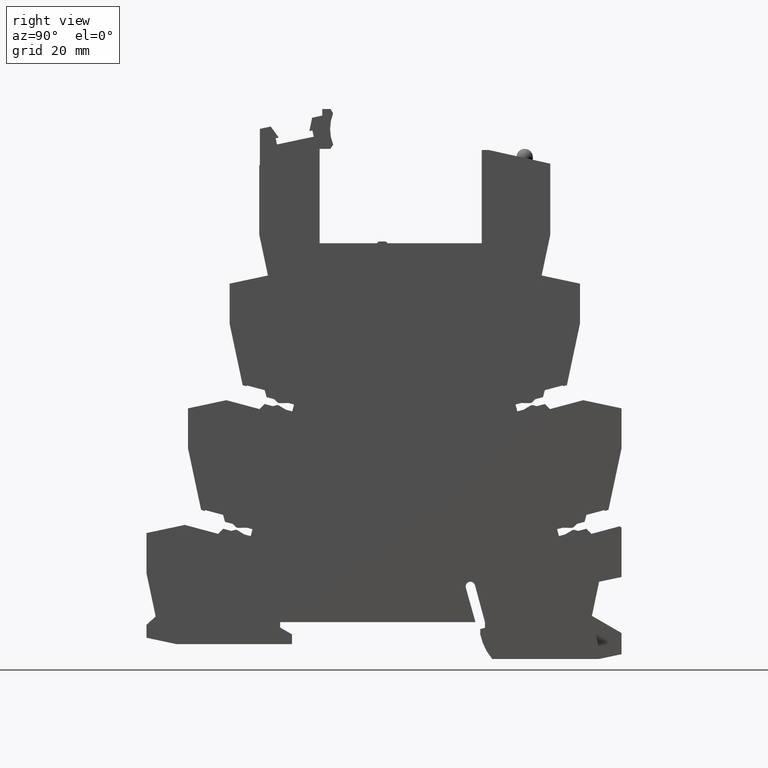
[diagram: clean part render]
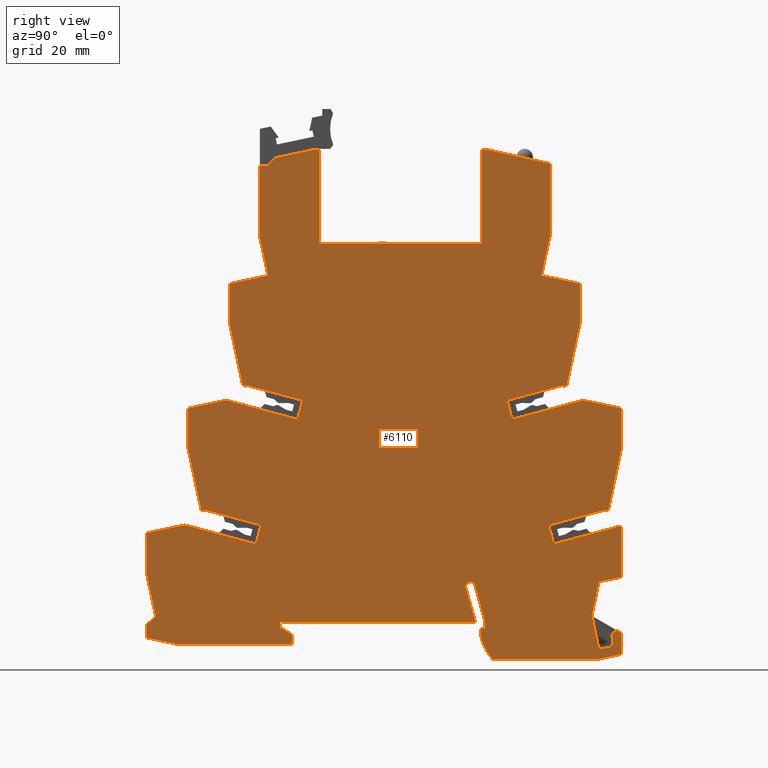
[diagram: same view with one face highlighted and labeled with its STEP entity id]
A machine part, right view. The second image highlights one B-rep face of the part: STEP entity #6110.
In plain terms, the highlighted planar face has unit normal (1, 0, 0).
Its self-contained STEP definition (entity closure, byte-faithful):
#10=CARTESIAN_POINT('',(-25.3383086227346,48.277169045282,
-14.7000000000047));
#20=DIRECTION('',(-6.05765437811101E-15,0.,-1.));
#30=DIRECTION('',(-1.,0.,6.05765437811101E-15));
#40=AXIS2_PLACEMENT_3D('',#10,#20,#30);
#50=PLANE('',#40);
#60=CARTESIAN_POINT('',(13.9023606813626,21.4296458395496,
-14.7000000000029));
#70=DIRECTION('',(-0.743144825475685,0.669130606360757,
-1.13595970351826E-28));
#80=VECTOR('',#70,1.);
#90=LINE('',#60,#80);
#100=CARTESIAN_POINT('',(41.3071599999478,-3.24574630020197,
-14.7000000000051));
#110=VERTEX_POINT('',#100);
#120=CARTESIAN_POINT('',(39.7528218855743,-1.84621397580661,
-14.700000000005));
#130=VERTEX_POINT('',#120);
#140=EDGE_CURVE('',#110,#130,#90,.T.);
#150=ORIENTED_EDGE('',*,*,#140,.F.);
#160=CARTESIAN_POINT('',(51.0081245112042,51.1058216480275,
-14.7000000000029));
#170=DIRECTION('',(0.207911690817746,0.978147600733809,
-4.1336311433581E-28));
#180=VECTOR('',#170,1.);
#190=LINE('',#160,#180);
#200=CARTESIAN_POINT('',(41.3071598519157,5.46637122094938,
-14.7000000000051));
#210=VERTEX_POINT('',#200);
#220=EDGE_CURVE('',#130,#210,#190,.T.);
#230=ORIENTED_EDGE('',*,*,#220,.F.);
#240=CARTESIAN_POINT('',(41.307159851914,51.1058216480282,
-14.7000000000029));
#250=DIRECTION('',(-3.84531582535338E-14,1.,-3.81404366214656E-28));
#260=VECTOR('',#250,1.);
#270=LINE('',#240,#260);
#280=CARTESIAN_POINT('',(41.3071598519155,12.1999999999919,
-14.7000000000029));
#290=VERTEX_POINT('',#280);
#300=EDGE_CURVE('',#210,#290,#270,.T.);
#310=ORIENTED_EDGE('',*,*,#300,.F.);
#320=CARTESIAN_POINT('',(13.9023606813624,18.0250698849493,
-14.7000000000029));
#330=DIRECTION('',(-0.978147600733754,0.207911690818003,
1.0097419586829E-28));
#340=VECTOR('',#330,1.);
#350=LINE('',#320,#340);
#360=CARTESIAN_POINT('',(34.8513856870564,13.5722171593942,
-14.700000000005));
#370=VERTEX_POINT('',#360);
#380=EDGE_CURVE('',#290,#370,#350,.T.);
#390=ORIENTED_EDGE('',*,*,#380,.F.);
#400=CARTESIAN_POINT('',(13.9023606813617,7.95894282689665,
-14.7000000000029));
#410=DIRECTION('',(-0.965925826289042,-0.258819045102618,
2.77679038637796E-28));
#420=VECTOR('',#410,1.);
#430=LINE('',#400,#420);
#440=CARTESIAN_POINT('',(22.8739055792484,10.3628610371459,
-14.7000000000049));
#450=VERTEX_POINT('',#440);
#460=EDGE_CURVE('',#370,#450,#430,.T.);
#470=ORIENTED_EDGE('',*,*,#460,.F.);
#480=CARTESIAN_POINT('',(25.6506258254262,-1.98951966012828E-13,
-14.700000000005));
#490=DIRECTION('',(0.258819045102391,-0.965925826289103,
-1.57204492065281E-15));
#500=VECTOR('',#490,1.);
#510=LINE('',#480,#500);
#520=CARTESIAN_POINT('',(22.0198027403498,13.5504162268059,
-14.7000000000049));
#530=VERTEX_POINT('',#520);
#540=EDGE_CURVE('',#530,#450,#510,.T.);
#550=ORIENTED_EDGE('',*,*,#540,.T.);
#560=CARTESIAN_POINT('',(0.207621999998275,7.7058600122732,
-14.7000000000048));
#570=DIRECTION('',(-0.965925826289137,-0.258819045102265,
5.83454228237228E-15));
#580=VECTOR('',#570,1.);
#590=LINE('',#560,#580);
#600=CARTESIAN_POINT('',(31.4230395794332,16.0700059440742,
-14.700000000005));
#610=VERTEX_POINT('',#600);
#620=EDGE_CURVE('',#610,#530,#590,.T.);
#630=ORIENTED_EDGE('',*,*,#620,.T.);
#640=CARTESIAN_POINT('',(35.7289846945113,-1.98951966012828E-13,
-14.700000000005));
#650=DIRECTION('',(0.25881904510252,-0.965925826289068,
-1.57204492066405E-15));
#660=VECTOR('',#650,1.);
#670=LINE('',#640,#660);
#680=CARTESIAN_POINT('',(31.4618552155896,15.9251440178106,
-14.700000000005));
#690=VERTEX_POINT('',#680);
#700=EDGE_CURVE('',#610,#690,#670,.T.);
#710=ORIENTED_EDGE('',*,*,#700,.F.);
#720=CARTESIAN_POINT('',(13.9023606813619,11.2200916378654,
-14.7000000000029));
#730=DIRECTION('',(0.965925826289068,0.258819045102521,
-2.77679038637796E-28));
#740=VECTOR('',#730,1.);
#750=LINE('',#720,#740);
#760=CARTESIAN_POINT('',(32.1030725181777,16.0969576762117,
-14.700000000005));
#770=VERTEX_POINT('',#760);
#780=EDGE_CURVE('',#690,#770,#750,.T.);
#790=ORIENTED_EDGE('',*,*,#780,.F.);
#800=CARTESIAN_POINT('',(39.5444362720085,51.1058216480283,
-14.7000000000029));
#810=DIRECTION('',(0.207911690817972,0.978147600733761,
-4.1336311433581E-28));
#820=VECTOR('',#810,1.);
#830=LINE('',#800,#820);
#840=CARTESIAN_POINT('',(34.3071599999269,26.4663740067623,
-14.7000000000029));
#850=VERTEX_POINT('',#840);
#860=EDGE_CURVE('',#770,#850,#830,.T.);
#870=ORIENTED_EDGE('',*,*,#860,.F.);
#880=CARTESIAN_POINT('',(34.3071599999287,51.1058216480286,
-14.7000000000029));
#890=DIRECTION('',(7.52336794680823E-14,1.,-3.81404366214677E-28));
#900=VECTOR('',#890,1.);
#910=LINE('',#880,#900);
#920=CARTESIAN_POINT('',(34.3071599999274,33.1999999999729,
-14.700000000005));
#930=VERTEX_POINT('',#920);
#940=EDGE_CURVE('',#850,#930,#910,.T.);
#950=ORIENTED_EDGE('',*,*,#940,.F.);
#960=CARTESIAN_POINT('',(13.9023606813636,37.5371739847014,
-14.7000000000029));
#970=DIRECTION('',(-0.97814760073373,0.207911690818114,
1.0097419586829E-28));
#980=VECTOR('',#970,1.);
#990=LINE('',#960,#980);
#1000=CARTESIAN_POINT('',(27.8513857524823,34.5722171769302,
-14.7000000000029));
#1010=VERTEX_POINT('',#1000);
#1020=EDGE_CURVE('',#930,#1010,#990,.T.);
#1030=ORIENTED_EDGE('',*,*,#1020,.F.);
#1040=CARTESIAN_POINT('',(13.9023606813632,30.8345871739231,
-14.7000000000029));
#1050=DIRECTION('',(-0.965925826289082,-0.258819045102471,
2.90300813121332E-28));
#1060=VECTOR('',#1050,1.);
#1070=LINE('',#1040,#1060);
#1080=CARTESIAN_POINT('',(15.8763554096512,31.363517467231,
-14.7000000000049));
#1090=VERTEX_POINT('',#1080);
#1100=EDGE_CURVE('',#1010,#1090,#1070,.T.);
#1110=ORIENTED_EDGE('',*,*,#1100,.F.);
#1120=CARTESIAN_POINT('',(24.2801845867908,-1.98951966012828E-13,
-14.700000000005));
#1130=DIRECTION('',(0.258819045102392,-0.965925826289103,
-1.55816713284503E-15));
#1140=VECTOR('',#1130,1.);
#1150=LINE('',#1120,#1140);
#1160=CARTESIAN_POINT('',(15.0222525608204,34.5510726939589,
-14.7000000000049));
#1170=VERTEX_POINT('',#1160);
#1180=EDGE_CURVE('',#1170,#1090,#1150,.T.);
#1190=ORIENTED_EDGE('',*,*,#1180,.T.);
#1200=CARTESIAN_POINT('',(13.9023606813634,34.2509985692485,
-14.7000000000029));
#1210=DIRECTION('',(0.965925826289124,0.258819045102314,
-2.77679038637796E-28));
#1220=VECTOR('',#1210,1.);
#1230=LINE('',#1200,#1220);
#1240=CARTESIAN_POINT('',(24.4230395694981,37.070005981149,
-14.7000000000029));
#1250=VERTEX_POINT('',#1240);
#1260=EDGE_CURVE('',#1170,#1250,#1230,.T.);
#1270=ORIENTED_EDGE('',*,*,#1260,.F.);
#1280=CARTESIAN_POINT('',(20.6621540964464,51.1058216480294,
-14.7000000000029));
#1290=DIRECTION('',(0.258819045102513,-0.965925826289071,
3.18699805709289E-28));
#1300=VECTOR('',#1290,1.);
#1310=LINE('',#1280,#1300);
#1320=CARTESIAN_POINT('',(24.4618552155886,36.9251440178107,
-14.7000000000029));
#1330=VERTEX_POINT('',#1320);
#1340=EDGE_CURVE('',#1250,#1330,#1310,.T.);
#1350=ORIENTED_EDGE('',*,*,#1340,.F.);
#1360=CARTESIAN_POINT('',(13.9023606813634,34.0957359848842,
-14.7000000000029));
#1370=DIRECTION('',(0.965925826289068,0.258819045102521,
-2.77679038637796E-28));
#1380=VECTOR('',#1370,1.);
#1390=LINE('',#1360,#1380);
#1400=CARTESIAN_POINT('',(25.1030728322198,37.0969577603595,
-14.7000000000029));
#1410=VERTEX_POINT('',#1400);
#1420=EDGE_CURVE('',#1330,#1410,#1390,.T.);
#1430=ORIENTED_EDGE('',*,*,#1420,.F.);
#1440=CARTESIAN_POINT('',(28.0807487730894,51.105821648029,
-14.7000000000029));
#1450=DIRECTION('',(0.207911690817972,0.978147600733761,
-4.1336311433581E-28));
#1460=VECTOR('',#1450,1.);
#1470=LINE('',#1440,#1460);
#1480=CARTESIAN_POINT('',(27.3071599999258,47.4663726134532,
-14.7000000000029));
#1490=VERTEX_POINT('',#1480);
#1500=EDGE_CURVE('',#1410,#1490,#1470,.T.);
#1510=ORIENTED_EDGE('',*,*,#1500,.F.);
#1520=CARTESIAN_POINT('',(27.3071599999261,51.105821648029,
-14.7000000000029));
#1530=DIRECTION('',(7.52336794624177E-14,1.,-3.81404366214676E-28));
#1540=VECTOR('',#1530,1.);
#1550=LINE('',#1520,#1540);
#1560=CARTESIAN_POINT('',(27.3071599999263,54.1999999999732,
-14.700000000005));
#1570=VERTEX_POINT('',#1560);
#1580=EDGE_CURVE('',#1490,#1570,#1550,.T.);
#1590=ORIENTED_EDGE('',*,*,#1580,.F.);
#1600=CARTESIAN_POINT('',(13.9023606813648,57.0492780530084,
-14.7000000000029));
#1610=DIRECTION('',(-0.97814760073373,0.207911690818114,
1.0097419586829E-28));
#1620=VECTOR('',#1610,1.);
#1630=LINE('',#1600,#1620);
#1640=CARTESIAN_POINT('',(20.8513856934917,55.5722171894691,
-14.7000000000049));
#1650=VERTEX_POINT('',#1640);
#1660=EDGE_CURVE('',#1570,#1650,#1630,.T.);
#1670=ORIENTED_EDGE('',*,*,#1660,.F.);
#1680=CARTESIAN_POINT('',(19.902024014144,51.1058216480295,
-14.7000000000029));
#1690=DIRECTION('',(0.20791169081797,0.978147600733761,
-4.1336311433581E-28));
#1700=VECTOR('',#1690,1.);
#1710=LINE('',#1680,#1700);
#1720=CARTESIAN_POINT('',(22.3071599998152,62.4210968235966,
-14.7000000000049));
#1730=VERTEX_POINT('',#1720);
#1740=EDGE_CURVE('',#1650,#1730,#1710,.T.);
#1750=ORIENTED_EDGE('',*,*,#1740,.F.);
#1760=CARTESIAN_POINT('',(22.3071599999991,51.1058216480293,
-14.7000000000029));
#1770=DIRECTION('',(6.25650888248224E-14,1.,-3.81404366214674E-28));
#1780=VECTOR('',#1770,1.);
#1790=LINE('',#1760,#1780);
#1800=CARTESIAN_POINT('',(22.3071600000005,74.1500000000194,
-14.7000000000029));
#1810=VERTEX_POINT('',#1800);
#1820=EDGE_CURVE('',#1730,#1810,#1790,.T.);
#1830=ORIENTED_EDGE('',*,*,#1820,.F.);
#1840=CARTESIAN_POINT('',(13.9023606813659,74.1500000000385,
-14.7000000000029));
#1850=DIRECTION('',(-1.,6.25650888220284E-14,1.89326617253043E-28));
#1860=VECTOR('',#1850,1.);
#1870=LINE('',#1840,#1860);
#1880=CARTESIAN_POINT('',(20.9071600000012,74.1500000000378,
-14.7000000000029));
#1890=VERTEX_POINT('',#1880);
#1900=EDGE_CURVE('',#1810,#1890,#1870,.T.);
#1910=ORIENTED_EDGE('',*,*,#1900,.F.);
#1920=CARTESIAN_POINT('',(43.9513383520062,51.105821648028,
-14.7000000000029));
#1930=DIRECTION('',(-0.707106781186473,0.707106781186622,
-1.38839519318898E-28));
#1940=VECTOR('',#1930,1.);
#1950=LINE('',#1920,#1940);
#1960=CARTESIAN_POINT('',(19.679829161347,75.3773308386923,
-14.7000000000029));
#1970=VERTEX_POINT('',#1960);
#1980=EDGE_CURVE('',#1890,#1970,#1950,.T.);
#1990=ORIENTED_EDGE('',*,*,#1980,.F.);
#2000=CARTESIAN_POINT('',(13.902360681366,76.6053696739544,
-14.7000000000029));
#2010=DIRECTION('',(-0.978147600733792,0.207911690817823,
1.13595970351826E-28));
#2020=VECTOR('',#2010,1.);
#2030=LINE('',#2000,#2020);
#2040=CARTESIAN_POINT('',(13.4571602828079,76.6999999699581,
-14.7000000000029));
#2050=VERTEX_POINT('',#2040);
#2060=EDGE_CURVE('',#1970,#2050,#2030,.T.);
#2070=ORIENTED_EDGE('',*,*,#2060,.F.);
#2080=CARTESIAN_POINT('',(13.902360681366,76.699999969958,
-14.7000000000029));
#2090=DIRECTION('',(-1.,6.29277372888817E-14,1.89326617253043E-28));
#2100=VECTOR('',#2090,1.);
#2110=LINE('',#2080,#2100);
#2120=CARTESIAN_POINT('',(12.1571599999999,76.6999999699582,
-14.7000000000049));
#2130=VERTEX_POINT('',#2120);
#2140=EDGE_CURVE('',#2050,#2130,#2110,.T.);
#2150=ORIENTED_EDGE('',*,*,#2140,.F.);
#2160=CARTESIAN_POINT('',(12.1571600000003,-1.98951966012828E-13,
-14.7000000000049));
#2170=DIRECTION('',(6.05765437811046E-15,-1.,-3.66539135155405E-29));
#2180=VECTOR('',#2170,1.);
#2190=LINE('',#2160,#2180);
#2200=CARTESIAN_POINT('',(12.15716,60.9999999789284,-14.7000000000049));
#2210=VERTEX_POINT('',#2200);
#2220=EDGE_CURVE('',#2130,#2210,#2190,.T.);
#2230=ORIENTED_EDGE('',*,*,#2220,.F.);
#2240=CARTESIAN_POINT('',(0.207621999998275,60.9999999789283,
-14.7000000000048));
#2250=DIRECTION('',(1.,6.05765437811046E-15,-6.05765437811101E-15));
#2260=VECTOR('',#2250,1.);
#2270=LINE('',#2240,#2260);
#2280=CARTESIAN_POINT('',(-15.1428399999999,60.9999999789282,
-14.7000000000047));
#2290=VERTEX_POINT('',#2280);
#2300=EDGE_CURVE('',#2290,#2210,#2270,.T.);
#2310=ORIENTED_EDGE('',*,*,#2300,.T.);
#2320=CARTESIAN_POINT('',(-15.1428398520916,-1.98951966012828E-13,
-14.700000000009));
#2330=DIRECTION('',(-6.29277372888824E-14,-1.,3.68322739801661E-28));
#2340=VECTOR('',#2330,1.);
#2350=LINE('',#2320,#2340);
#2360=CARTESIAN_POINT('',(-15.14284,76.7000000000351,-14.700000000009));
#2370=VERTEX_POINT('',#2360);
#2380=EDGE_CURVE('',#2370,#2290,#2350,.T.);
#2390=ORIENTED_EDGE('',*,*,#2380,.T.);
#2400=CARTESIAN_POINT('',(13.902360681366,76.7000000000333,
-14.7000000000029));
#2410=DIRECTION('',(-1.,6.29277372888817E-14,1.89326617253043E-28));
#2420=VECTOR('',#2410,1.);
#2430=LINE('',#2400,#2420);
#2440=CARTESIAN_POINT('',(-16.3428398520889,76.7000000000352,
-14.7000000000029));
#2450=VERTEX_POINT('',#2440);
#2460=EDGE_CURVE('',#2370,#2450,#2430,.T.);
#2470=ORIENTED_EDGE('',*,*,#2460,.F.);
#2480=CARTESIAN_POINT('',(13.9023606813664,83.4211556741326,
-14.7000000000029));
#2490=DIRECTION('',(-0.976187060183979,-0.216930457818539,
2.6505726415426E-28));
#2500=VECTOR('',#2490,1.);
#2510=LINE('',#2480,#2500);
#2520=CARTESIAN_POINT('',(-26.6928399999995,74.3999999671675,
-14.7000000000029));
#2530=VERTEX_POINT('',#2520);
#2540=EDGE_CURVE('',#2450,#2530,#2510,.T.);
#2550=ORIENTED_EDGE('',*,*,#2540,.F.);
#2560=CARTESIAN_POINT('',(-26.6928400000009,51.1058216480324,
-14.7000000000029));
#2570=DIRECTION('',(-6.25650887987416E-14,-1.,3.81404366214674E-28));
#2580=VECTOR('',#2570,1.);
#2590=LINE('',#2560,#2580);
#2600=CARTESIAN_POINT('',(-26.6928400000003,62.4210975206028,
-14.7000000000046));
#2610=VERTEX_POINT('',#2600);
#2620=EDGE_CURVE('',#2530,#2610,#2590,.T.);
#2630=ORIENTED_EDGE('',*,*,#2620,.F.);
#2640=CARTESIAN_POINT('',(-24.2877038661778,51.1058216480323,
-14.7000000000029));
#2650=DIRECTION('',(0.207911690817847,-0.978147600733787,
3.34477023813709E-28));
#2660=VECTOR('',#2650,1.);
#2670=LINE('',#2640,#2660);
#2680=CARTESIAN_POINT('',(-25.2370655455295,55.5722171894929,
-14.7000000000047));
#2690=VERTEX_POINT('',#2680);
#2700=EDGE_CURVE('',#2610,#2690,#2670,.T.);
#2710=ORIENTED_EDGE('',*,*,#2700,.F.);
#2720=CARTESIAN_POINT('',(13.9023606813652,63.891559054032,
-14.7000000000029));
#2730=DIRECTION('',(-0.978147600733741,-0.207911690818066,
2.6505726415426E-28));
#2740=VECTOR('',#2730,1.);
#2750=LINE('',#2720,#2740);
#2760=CARTESIAN_POINT('',(-31.6928398520708,54.1999999999747,
-14.7000000000046));
#2770=VERTEX_POINT('',#2760);
#2780=EDGE_CURVE('',#2690,#2770,#2750,.T.);
#2790=ORIENTED_EDGE('',*,*,#2780,.F.);
#2800=CARTESIAN_POINT('',(-31.6928398520707,51.1058216480327,
-14.7000000000029));
#2810=DIRECTION('',(2.63517272720816E-14,-1.,3.81404366214657E-28));
#2820=VECTOR('',#2810,1.);
#2830=LINE('',#2800,#2820);
#2840=CARTESIAN_POINT('',(-31.6928398520707,47.4663719169752,
-14.7000000000046));
#2850=VERTEX_POINT('',#2840);
#2860=EDGE_CURVE('',#2770,#2850,#2830,.T.);
#2870=ORIENTED_EDGE('',*,*,#2860,.F.);
#2880=CARTESIAN_POINT('',(-32.4664287732755,51.1058216480328,
-14.7000000000029));
#2890=DIRECTION('',(0.207911690817847,-0.978147600733787,
3.34477023813709E-28));
#2900=VECTOR('',#2890,1.);
#2910=LINE('',#2880,#2900);
#2920=CARTESIAN_POINT('',(-29.4887528145307,37.096957676258,
-14.7000000000046));
#2930=VERTEX_POINT('',#2920);
#2940=EDGE_CURVE('',#2850,#2930,#2910,.T.);
#2950=ORIENTED_EDGE('',*,*,#2940,.F.);
#2960=CARTESIAN_POINT('',(13.9023606813628,25.4703438563437,
-14.7000000000029));
#2970=DIRECTION('',(0.965925826289056,-0.258819045102568,
-8.83524213847533E-29));
#2980=VECTOR('',#2970,1.);
#2990=LINE('',#2960,#2980);
#3000=CARTESIAN_POINT('',(-28.8475355117785,36.9251440178125,
-14.7000000000029));
#3010=VERTEX_POINT('',#3000);
#3020=EDGE_CURVE('',#2930,#3010,#2990,.T.);
#3030=ORIENTED_EDGE('',*,*,#3020,.F.);
#3040=CARTESIAN_POINT('',(-25.0478343926334,51.1058216480323,
-14.7000000000029));
#3050=DIRECTION('',(0.258819045102567,0.965925826289056,
-4.1336311433581E-28));
#3060=VECTOR('',#3050,1.);
#3070=LINE('',#3040,#3060);
#3080=CARTESIAN_POINT('',(-28.8087198656886,37.0700059811487,
-14.7000000000029));
#3090=VERTEX_POINT('',#3080);
#3100=EDGE_CURVE('',#3010,#3090,#3070,.T.);
#3110=ORIENTED_EDGE('',*,*,#3100,.F.);
#3120=CARTESIAN_POINT('',(13.9023606813628,25.6256064407124,
-14.7000000000029));
#3130=DIRECTION('',(0.965925826289106,-0.258819045102379,
-8.83524213847533E-29));
#3140=VECTOR('',#3130,1.);
#3150=LINE('',#3120,#3140);
#3160=CARTESIAN_POINT('',(-19.4054827403459,34.55041622686,
-14.7000000000047));
#3170=VERTEX_POINT('',#3160);
#3180=EDGE_CURVE('',#3090,#3170,#3150,.T.);
#3190=ORIENTED_EDGE('',*,*,#3180,.F.);
#3200=CARTESIAN_POINT('',(-28.663238866497,-1.98951966012828E-13,
-14.7000000000046));
#3210=DIRECTION('',(0.258819045102645,0.965925826289035,
-1.55816713286708E-15));
#3220=VECTOR('',#3210,1.);
#3230=LINE('',#3200,#3220);
#3240=CARTESIAN_POINT('',(-20.259585589177,31.3628610001345,
-14.7000000000047));
#3250=VERTEX_POINT('',#3240);
#3260=EDGE_CURVE('',#3250,#3170,#3230,.T.);
#3270=ORIENTED_EDGE('',*,*,#3260,.T.);
#3280=CARTESIAN_POINT('',(13.9023606813626,22.2091950453828,
-14.7000000000029));
#3290=DIRECTION('',(-0.965925826289069,0.258819045102518,
8.83524213847533E-29));
#3300=VECTOR('',#3290,1.);
#3310=LINE('',#3280,#3300);
#3320=CARTESIAN_POINT('',(-32.2370658522471,34.5722171242985,
-14.7000000000046));
#3330=VERTEX_POINT('',#3320);
#3340=EDGE_CURVE('',#3250,#3330,#3310,.T.);
#3350=ORIENTED_EDGE('',*,*,#3340,.F.);
#3360=CARTESIAN_POINT('',(13.902360681364,44.3794549857209,
-14.7000000000029));
#3370=DIRECTION('',(-0.978147600733756,-0.207911690817991,
2.6505726415426E-28));
#3380=VECTOR('',#3370,1.);
#3390=LINE('',#3360,#3380);
#3400=CARTESIAN_POINT('',(-38.6928398520729,33.1999999999752,
-14.7000000000046));
#3410=VERTEX_POINT('',#3400);
#3420=EDGE_CURVE('',#3330,#3410,#3390,.T.);
#3430=ORIENTED_EDGE('',*,*,#3420,.F.);
#3440=CARTESIAN_POINT('',(-38.6928398520733,51.1058216480332,
-14.7000000000029));
#3450=DIRECTION('',(2.63517272777463E-14,-1.,3.81404366214657E-28));
#3460=VECTOR('',#3450,1.);
#3470=LINE('',#3440,#3460);
#3480=CARTESIAN_POINT('',(-38.6928398520727,26.4663719173216,
-14.7000000000046));
#3490=VERTEX_POINT('',#3480);
#3500=EDGE_CURVE('',#3410,#3490,#3470,.T.);
#3510=ORIENTED_EDGE('',*,*,#3500,.F.);
#3520=CARTESIAN_POINT('',(-43.9301165682765,51.1058216480335,
-14.7000000000029));
#3530=DIRECTION('',(0.207911690817847,-0.978147600733787,
3.34477023813709E-28));
#3540=VECTOR('',#3530,1.);
#3550=LINE('',#3520,#3540);
#3560=CARTESIAN_POINT('',(-36.4887528323276,16.0969577603227,
-14.7000000000046));
#3570=VERTEX_POINT('',#3560);
#3580=EDGE_CURVE('',#3490,#3570,#3550,.T.);
#3590=ORIENTED_EDGE('',*,*,#3580,.F.);
#3600=CARTESIAN_POINT('',(13.9023606813614,2.59469958866131,
-14.7000000000029));
#3610=DIRECTION('',(0.965925826289244,-0.258819045101864,
-8.83524213847533E-29));
#3620=VECTOR('',#3610,1.);
#3630=LINE('',#3600,#3620);
#3640=CARTESIAN_POINT('',(-35.8475352157464,15.9251440177875,
-14.7000000000029));
#3650=VERTEX_POINT('',#3640);
#3660=EDGE_CURVE('',#3570,#3650,#3630,.T.);
#3670=ORIENTED_EDGE('',*,*,#3660,.F.);
#3680=CARTESIAN_POINT('',(-40.1146646946504,-1.98951966012828E-13,
-14.7000000000046));
#3690=DIRECTION('',(0.258819045101863,0.965925826289245,
-1.57204492060692E-15));
#3700=VECTOR('',#3690,1.);
#3710=LINE('',#3680,#3700);
#3720=CARTESIAN_POINT('',(-35.8087195795595,16.0700059441658,
-14.7000000000046));
#3730=VERTEX_POINT('',#3720);
#3740=EDGE_CURVE('',#3650,#3730,#3710,.T.);
#3750=ORIENTED_EDGE('',*,*,#3740,.F.);
#3760=CARTESIAN_POINT('',(0.207621999998275,6.41945630359996,
-14.7000000000048));
#3770=DIRECTION('',(-0.965925826289069,0.258819045102519,
5.83454228236638E-15));
#3780=VECTOR('',#3770,1.);
#3790=LINE('',#3760,#3780);
#3800=CARTESIAN_POINT('',(-26.4054827403487,13.5504162268607,
-14.7000000000046));
#3810=VERTEX_POINT('',#3800);
#3820=EDGE_CURVE('',#3810,#3730,#3790,.T.);
#3830=ORIENTED_EDGE('',*,*,#3820,.T.);
#3840=CARTESIAN_POINT('',(-30.0363058254435,-1.98951966012828E-13,
-14.7000000000046));
#3850=DIRECTION('',(0.258819045102645,0.965925826289035,
-1.55816713286708E-15));
#3860=VECTOR('',#3850,1.);
#3870=LINE('',#3840,#3860);
#3880=CARTESIAN_POINT('',(-27.2595855792674,10.3628610371287,
-14.7000000000046));
#3890=VERTEX_POINT('',#3880);
#3900=EDGE_CURVE('',#3890,#3810,#3870,.T.);
#3910=ORIENTED_EDGE('',*,*,#3900,.T.);
#3920=CARTESIAN_POINT('',(13.9023606813612,-0.666449222294823,
-14.7000000000029));
#3930=DIRECTION('',(-0.965925826289099,0.258819045102408,
7.57306469012171E-29));
#3940=VECTOR('',#3930,1.);
#3950=LINE('',#3920,#3940);
#3960=CARTESIAN_POINT('',(-38.3798491333443,13.3425266760635,
-14.7000000000348));
#3970=VERTEX_POINT('',#3960);
#3980=EDGE_CURVE('',#3890,#3970,#3950,.T.);
#3990=ORIENTED_EDGE('',*,*,#3980,.F.);
#4000=CARTESIAN_POINT('',(0.207621999998275,42.9517346451419,
-14.7000000000048));
#4010=DIRECTION('',(0.793353340291217,0.608761429008745,
-4.81196661607707E-15));
#4020=VECTOR('',#4010,1.);
#4030=LINE('',#4000,#4020);
#4040=CARTESIAN_POINT('',(-38.6928400000939,13.1023603076509,
-14.7000000000348));
#4050=VERTEX_POINT('',#4040);
#4060=EDGE_CURVE('',#4050,#3970,#4030,.T.);
#4070=ORIENTED_EDGE('',*,*,#4060,.T.);
#4080=CARTESIAN_POINT('',(-38.6928400000915,51.1058216480332,
-14.7000000000029));
#4090=DIRECTION('',(-6.2746413039548E-14,-1.,3.81404366214674E-28));
#4100=VECTOR('',#4090,1.);
#4110=LINE('',#4080,#4100);
#4120=CARTESIAN_POINT('',(-38.6928400000952,4.80000000001769,
-14.7000000000029));
#4130=VERTEX_POINT('',#4120);
#4140=EDGE_CURVE('',#4050,#4130,#4110,.T.);
#4150=ORIENTED_EDGE('',*,*,#4140,.F.);
#4160=CARTESIAN_POINT('',(13.9023606813608,-6.27267382766092,
-14.7000000000029));
#4170=DIRECTION('',(0.978549784986735,-0.206010481049907,
-1.13595970351826E-28));
#4180=VECTOR('',#4170,1.);
#4190=LINE('',#4160,#4180);
#4200=CARTESIAN_POINT('',(-34.9111896091923,4.00386307561681,
-14.7000000000029));
#4210=VERTEX_POINT('',#4200);
#4220=EDGE_CURVE('',#4130,#4210,#4190,.T.);
#4230=ORIENTED_EDGE('',*,*,#4220,.F.);
#4240=CARTESIAN_POINT('',(-44.8273914139078,51.1058216480335,
-14.7000000000029));
#4250=DIRECTION('',(0.206010481049782,-0.978549784986762,
3.34477023813709E-28));
#4260=VECTOR('',#4250,1.);
#4270=LINE('',#4240,#4260);
#4280=CARTESIAN_POINT('',(-33.7002853817285,-1.74793200483455,
-14.7000000000046));
#4290=VERTEX_POINT('',#4280);
#4300=EDGE_CURVE('',#4210,#4290,#4270,.T.);
#4310=ORIENTED_EDGE('',*,*,#4300,.F.);
#4320=CARTESIAN_POINT('',(-33.3311973076726,-1.98951966012828E-13,
-14.7000000000046));
#4330=DIRECTION('',(-0.206601329565584,-0.978425209518711,
1.24868356928102E-15));
#4340=VECTOR('',#4330,1.);
#4350=LINE('',#4320,#4340);
#4360=CARTESIAN_POINT('',(-34.8937187515693,-7.39980896704165,
-14.7000000000046));
#4370=VERTEX_POINT('',#4360);
#4380=EDGE_CURVE('',#4290,#4370,#4350,.T.);
#4390=ORIENTED_EDGE('',*,*,#4380,.F.);
#4400=CARTESIAN_POINT('',(0.207621999998275,-15.0305352173892,
-14.7000000000048));
#4410=DIRECTION('',(-0.977176363922762,0.212429644331224,
5.9111250487169E-15));
#4420=VECTOR('',#4410,1.);
#4430=LINE('',#4400,#4420);
#4440=CARTESIAN_POINT('',(-37.1928400000098,-6.89999999998892,
-14.7000000000046));
#4450=VERTEX_POINT('',#4440);
#4460=EDGE_CURVE('',#4370,#4450,#4430,.T.);
#4470=ORIENTED_EDGE('',*,*,#4460,.F.);
#4480=CARTESIAN_POINT('',(-37.1928400000081,-1.98951966012828E-13,
-14.7000000000046));
#4490=DIRECTION('',(2.36661990600508E-13,1.,-1.45166363924346E-27));
#4500=VECTOR('',#4490,1.);
#4510=LINE('',#4480,#4500);
#4520=CARTESIAN_POINT('',(-37.1928400000094,-5.47956330769062,
-14.7000000000046));
#4530=VERTEX_POINT('',#4520);
#4540=EDGE_CURVE('',#4450,#4530,#4510,.T.);
#4550=ORIENTED_EDGE('',*,*,#4540,.F.);
#4560=CARTESIAN_POINT('',(-37.8928400000094,-5.09226497306986,
-14.7000000000046));
#4570=DIRECTION('',(-6.05765437811101E-15,2.4492931757729E-16,-1.));
#4580=DIRECTION('',(-1.,1.84122357719981E-13,6.05765437811106E-15));
#4590=AXIS2_PLACEMENT_3D('',#4560,#4570,#4580);
#4600=CIRCLE('',#4590,0.8);
#4610=CARTESIAN_POINT('',(-38.292840000042,-4.39944464998555,
-14.7000000000046));
#4620=VERTEX_POINT('',#4610);
#4630=EDGE_CURVE('',#4620,#4530,#4600,.T.);
#4640=ORIENTED_EDGE('',*,*,#4630,.T.);
#4650=CARTESIAN_POINT('',(-8.04284000205404,13.065400991837,
-14.7000000000029));
#4660=DIRECTION('',(-0.86602540378447,-0.499999999999946,
-1.9637582105036E-17));
#4670=VECTOR('',#4660,1.);
#4680=LINE('',#4650,#4670);
#4690=CARTESIAN_POINT('',(-38.6928400000558,-4.63038475766933,
-14.7000000000029));
#4700=VERTEX_POINT('',#4690);
#4710=EDGE_CURVE('',#4620,#4700,#4680,.T.);
#4720=ORIENTED_EDGE('',*,*,#4710,.F.);
#4730=CARTESIAN_POINT('',(-38.6928400000523,51.1058216480332,
-14.7000000000029));
#4740=DIRECTION('',(-6.2746413039548E-14,-1.,3.81404366214674E-28));
#4750=VECTOR('',#4740,1.);
#4760=LINE('',#4730,#4750);
#4770=CARTESIAN_POINT('',(-38.692840000056,-8.19999999999071,
-14.7000000000029));
#4780=VERTEX_POINT('',#4770);
#4790=EDGE_CURVE('',#4700,#4780,#4760,.T.);
#4800=ORIENTED_EDGE('',*,*,#4790,.F.);
#4810=CARTESIAN_POINT('',(13.90236068136,-19.272673827661,
-14.7000000000029));
#4820=DIRECTION('',(0.978549784986735,-0.206010481049909,
-1.13595970351826E-28));
#4830=VECTOR('',#4820,1.);
#4840=LINE('',#4810,#4830);
#4850=CARTESIAN_POINT('',(-34.8928400000569,-8.99999999999097,
-14.7000000000029));
#4860=VERTEX_POINT('',#4850);
#4870=EDGE_CURVE('',#4780,#4860,#4840,.T.);
#4880=ORIENTED_EDGE('',*,*,#4870,.F.);
#4890=CARTESIAN_POINT('',(13.9023606813607,-8.99999999999405,
-14.7000000000029));
#4900=DIRECTION('',(1.,-6.29277373059034E-14,-1.89326617253043E-28));
#4910=VECTOR('',#4900,1.);
#4920=LINE('',#4890,#4910);
#4930=CARTESIAN_POINT('',(-16.909983417643,-8.99999999999255,
-14.7000000000025));
#4940=VERTEX_POINT('',#4930);
#4950=EDGE_CURVE('',#4860,#4940,#4920,.T.);
#4960=ORIENTED_EDGE('',*,*,#4950,.F.);
#4970=CARTESIAN_POINT('',(-24.1928400000555,-2.8999999999917,
-14.7000000000029));
#4980=DIRECTION('',(-6.27941947176454E-14,4.3091449959983E-27,1.));
#4990=DIRECTION('',(-1.,6.29277372940018E-14,-6.27941947176454E-14));
#5000=AXIS2_PLACEMENT_3D('',#4970,#4980,#4990);
#5010=CIRCLE('',#5000,9.49999999999998);
#5020=CARTESIAN_POINT('',(-14.8928400000558,-4.8390719429593,
-14.7000000000023));
#5030=VERTEX_POINT('',#5020);
#5040=EDGE_CURVE('',#4940,#5030,#5010,.T.);
#5050=ORIENTED_EDGE('',*,*,#5040,.F.);
#5060=CARTESIAN_POINT('',(-14.8928400000523,51.1058216480317,
-14.7000000000029));
#5070=DIRECTION('',(6.29277372940018E-14,1.,-3.81404366214674E-28));
#5080=VECTOR('',#5070,1.);
#5090=LINE('',#5060,#5080);
#5100=CARTESIAN_POINT('',(-14.8928400000557,-3.96435935393714,
-14.7000000000029));
#5110=VERTEX_POINT('',#5100);
#5120=EDGE_CURVE('',#5030,#5110,#5090,.T.);
#5130=ORIENTED_EDGE('',*,*,#5120,.F.);
#5140=CARTESIAN_POINT('',(13.9023606813605,-11.6800101224167,
-14.7000000000029));
#5150=DIRECTION('',(-0.965925826289052,0.258819045102581,
8.83524213847533E-29));
#5160=VECTOR('',#5150,1.);
#5170=LINE('',#5140,#5160);
#5180=CARTESIAN_POINT('',(-15.6928400000555,-3.74999999999226,
-14.7000000000029));
#5190=VERTEX_POINT('',#5180);
#5200=EDGE_CURVE('',#5110,#5190,#5170,.T.);
#5210=ORIENTED_EDGE('',*,*,#5200,.F.);
#5220=CARTESIAN_POINT('',(-15.692840000052,51.1058216480317,
-14.7000000000029));
#5230=DIRECTION('',(6.2746413039548E-14,1.,-3.81404366214674E-28));
#5240=VECTOR('',#5230,1.);
#5250=LINE('',#5220,#5240);
#5260=CARTESIAN_POINT('',(-15.6928400000554,-2.79999999999232,
-14.7000000000029));
#5270=VERTEX_POINT('',#5260);
#5280=EDGE_CURVE('',#5190,#5270,#5250,.T.);
#5290=ORIENTED_EDGE('',*,*,#5280,.F.);
#5300=CARTESIAN_POINT('',(-1.12652161205948,51.1058216480308,
-14.7000000000029));
#5310=DIRECTION('',(0.260861917169258,0.965376123679667,
-4.19674001577578E-28));
#5320=VECTOR('',#5310,1.);
#5330=LINE('',#5300,#5320);
#5340=CARTESIAN_POINT('',(-14.0151408989989,3.40868953374283,
-14.7000000000029));
#5350=VERTEX_POINT('',#5340);
#5360=EDGE_CURVE('',#5270,#5350,#5330,.T.);
#5370=ORIENTED_EDGE('',*,*,#5360,.F.);
#5380=CARTESIAN_POINT('',(-13.2428400000551,3.20000000000755,
-14.7000000000029));
#5390=DIRECTION('',(-6.27941947176454E-14,4.3091449959983E-27,1.));
#5400=DIRECTION('',(-1.,6.29277372940018E-14,-6.27941947176454E-14));
#5410=AXIS2_PLACEMENT_3D('',#5380,#5390,#5400);
#5420=CIRCLE('',#5410,0.799999999999996);
#5430=CARTESIAN_POINT('',(-12.4724953580677,2.98420117572594,
-14.7000000000029));
#5440=VERTEX_POINT('',#5430);
#5450=EDGE_CURVE('',#5440,#5350,#5420,.T.);
#5460=ORIENTED_EDGE('',*,*,#5450,.T.);
#5470=CARTESIAN_POINT('',(1.00795034693235,51.1058216480307,
-14.7000000000029));
#5480=DIRECTION('',(-0.269748530351999,-0.962930802484237,
4.19674001577578E-28));
#5490=VECTOR('',#5480,1.);
#5500=LINE('',#5470,#5490);
#5510=CARTESIAN_POINT('',(-14.0928400000555,-2.79999999999233,
-14.7000000000029));
#5520=VERTEX_POINT('',#5510);
#5530=EDGE_CURVE('',#5440,#5520,#5500,.T.);
#5540=ORIENTED_EDGE('',*,*,#5530,.F.);
#5550=CARTESIAN_POINT('',(13.9023606813611,-2.79999999999408,
-14.7000000000029));
#5560=DIRECTION('',(1.,-6.29277373059034E-14,-1.89326617253043E-28));
#5570=VECTOR('',#5560,1.);
#5580=LINE('',#5550,#5570);
#5590=CARTESIAN_POINT('',(18.8071599999437,-2.79999999999438,
-14.7000000000029));
#5600=VERTEX_POINT('',#5590);
#5610=EDGE_CURVE('',#5520,#5600,#5580,.T.);
#5620=ORIENTED_EDGE('',*,*,#5610,.F.);
#5630=CARTESIAN_POINT('',(18.8071599999479,51.1058216480296,
-14.7000000000029));
#5640=DIRECTION('',(-6.2746413039548E-14,-1.,3.81404366214674E-28));
#5650=VECTOR('',#5640,1.);
#5660=LINE('',#5630,#5650);
#5670=CARTESIAN_POINT('',(18.8071599999445,-3.69999999999439,
-14.7000000000029));
#5680=VERTEX_POINT('',#5670);
#5690=EDGE_CURVE('',#5600,#5680,#5660,.T.);
#5700=ORIENTED_EDGE('',*,*,#5690,.F.);
#5710=CARTESIAN_POINT('',(13.9023606813608,-6.53178720689933,
-14.7000000000029));
#5720=DIRECTION('',(-0.86602540378447,-0.499999999999945,
3.66031460022549E-28));
#5730=VECTOR('',#5720,1.);
#5740=LINE('',#5710,#5730);
#5750=CARTESIAN_POINT('',(16.8071599999446,-4.85470053837341,
-14.7000000000029));
#5760=VERTEX_POINT('',#5750);
#5770=EDGE_CURVE('',#5680,#5760,#5740,.T.);
#5780=ORIENTED_EDGE('',*,*,#5770,.F.);
#5790=CARTESIAN_POINT('',(16.8071599999481,51.1058216480297,
-14.7000000000029));
#5800=DIRECTION('',(-6.2746413039548E-14,-1.,3.81404366214674E-28));
#5810=VECTOR('',#5800,1.);
#5820=LINE('',#5790,#5810);
#5830=CARTESIAN_POINT('',(16.8071599999445,-6.50000000000001,
-14.7000000000029));
#5840=VERTEX_POINT('',#5830);
#5850=EDGE_CURVE('',#5760,#5840,#5820,.T.);
#5860=ORIENTED_EDGE('',*,*,#5850,.F.);
#5870=CARTESIAN_POINT('',(13.9023606813608,-6.49999999999982,
-14.7000000000029));
#5880=DIRECTION('',(1.,-6.27464130514497E-14,-1.89326617253043E-28));
#5890=VECTOR('',#5880,1.);
#5900=LINE('',#5870,#5890);
#5910=CARTESIAN_POINT('',(36.2571599999291,-6.50000000000141,
-14.7000000000029));
#5920=VERTEX_POINT('',#5910);
#5930=EDGE_CURVE('',#5840,#5920,#5900,.T.);
#5940=ORIENTED_EDGE('',*,*,#5930,.F.);
#5950=CARTESIAN_POINT('',(13.9023606813605,-11.2516592799781,
-14.7000000000029));
#5960=DIRECTION('',(0.97814760073382,0.207911690817693,
-2.6505726415426E-28));
#5970=VECTOR('',#5960,1.);
#5980=LINE('',#5950,#5970);
#5990=CARTESIAN_POINT('',(41.3071599999468,-5.42658936356439,
-14.7000000000029));
#6000=VERTEX_POINT('',#5990);
#6010=EDGE_CURVE('',#5920,#6000,#5980,.T.);
#6020=ORIENTED_EDGE('',*,*,#6010,.F.);
#6030=CARTESIAN_POINT('',(41.3071599999512,51.1058216480282,
-14.7000000000029));
#6040=DIRECTION('',(6.2927737309785E-14,1.,-3.81404366214674E-28));
#6050=VECTOR('',#6040,1.);
#6060=LINE('',#6030,#6050);
#6070=EDGE_CURVE('',#6000,#110,#6060,.T.);
#6080=ORIENTED_EDGE('',*,*,#6070,.F.);
#6090=EDGE_LOOP('',(#6080,#6020,#5940,#5860,#5780,#5700,#5620,#5540,
#5460,#5370,#5290,#5210,#5130,#5050,#4960,#4880,#4800,#4720,#4640,#4550,
#4470,#4390,#4310,#4230,#4150,#4070,#3990,#3910,#3830,#3750,#3670,#3590,
#3510,#3430,#3350,#3270,#3190,#3110,#3030,#2950,#2870,#2790,#2710,#2630,
#2550,#2470,#2390,#2310,#2230,#2150,#2070,#1990,#1910,#1830,#1750,#1670,
#1590,#1510,#1430,#1350,#1270,#1190,#1110,#1030,#950,#870,#790,#710,#630
,#550,#470,#390,#310,#230,#150));
#6100=FACE_OUTER_BOUND('',#6090,.T.);
#6110=ADVANCED_FACE('',(#6100),#50,.T.);